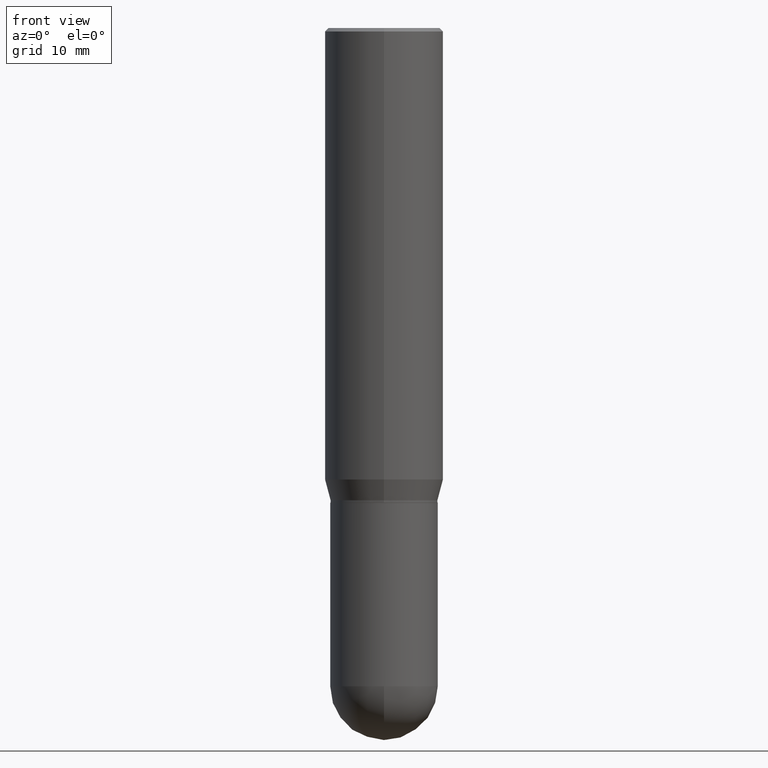
[diagram: clean part render]
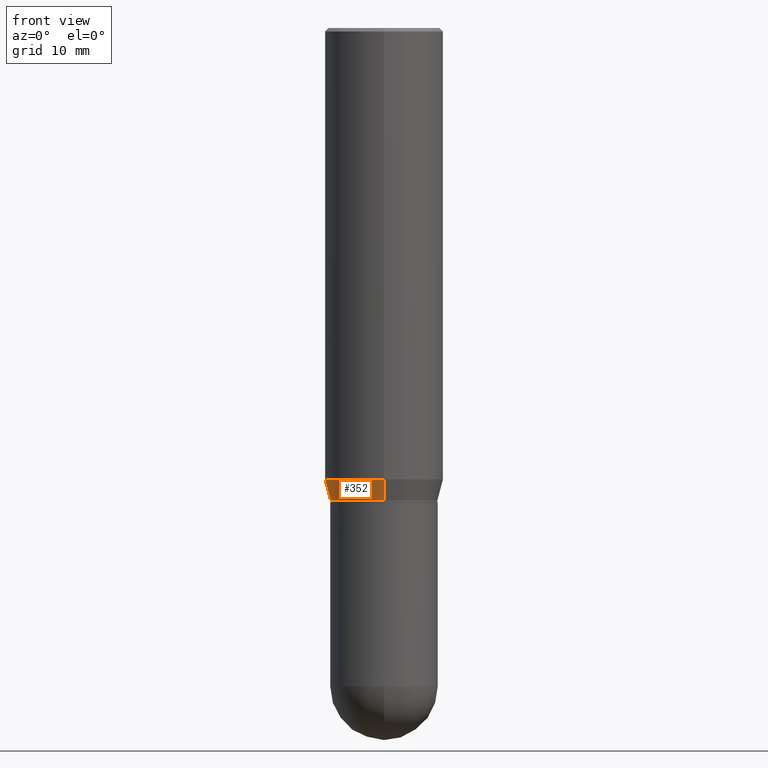
[diagram: same view with one face highlighted and labeled with its STEP entity id]
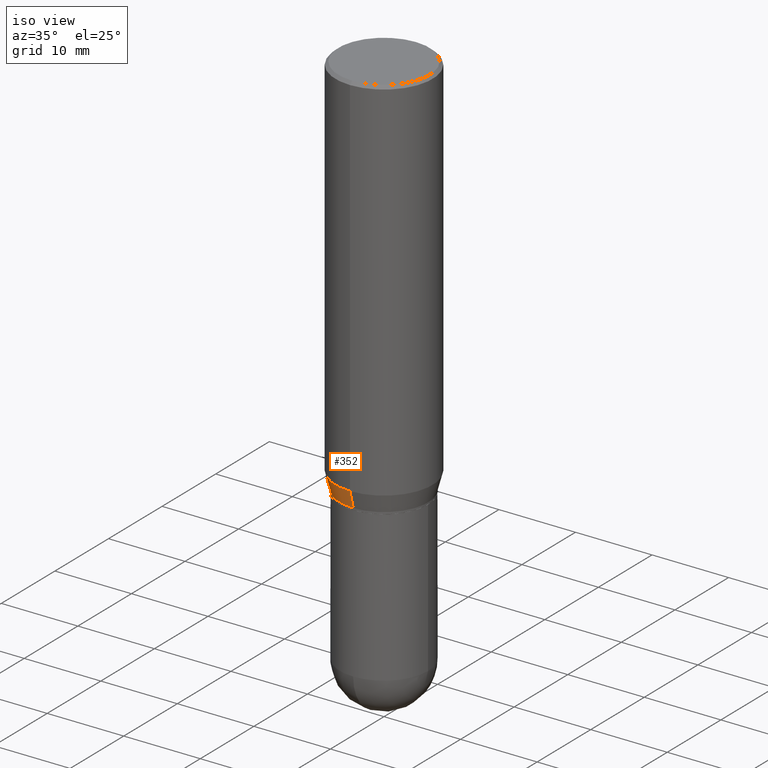
[diagram: same view with one face highlighted and labeled with its STEP entity id]
A machine part, front view. The second image highlights one B-rep face of the part: STEP entity #352.
A second angle (iso view) of the same face is appended — the face is thin or edge-on in the first view.
In plain terms, the highlighted conical surface has half-angle 15 deg.
Its self-contained STEP definition (entity closure, byte-faithful):
#30 = CARTESIAN_POINT ( 'NONE',  ( 4.867212225805769554E-29, -6.947003463044396900E-15, -1.990000000000000435 ) ) ;
#33 = DIRECTION ( 'NONE',  ( -2.445835289349632530E-29, 3.490956514092661325E-15, 1.000000000000000000 ) ) ;
#36 = LINE ( 'NONE', #156, #383 ) ;
#56 = ORIENTED_EDGE ( 'NONE', *, *, #179, .T. ) ;
#57 = AXIS2_PLACEMENT_3D ( 'NONE', #30, #500, #374 ) ;
#64 = AXIS2_PLACEMENT_3D ( 'NONE', #189, #33, #257 ) ;
#85 = ORIENTED_EDGE ( 'NONE', *, *, #329, .F. ) ;
#92 = ORIENTED_EDGE ( 'NONE', *, *, #115, .F. ) ;
#107 = DIRECTION ( 'NONE',  ( 1.839019923739601893E-15, 0.2588190451025252359, 0.9659258262890670910 ) ) ;
#110 = CIRCLE ( 'NONE', #64, 0.2500000000000000000 ) ;
#112 = CARTESIAN_POINT ( 'NONE',  ( 1.776356839400296613E-15, 0.2499999999999933664, -1.902483408562511302 ) ) ;
#115 = EDGE_CURVE ( 'NONE', #396, #135, #223, .T. ) ;
#135 = VERTEX_POINT ( 'NONE', #112 ) ;
#152 = CONICAL_SURFACE ( 'NONE', #57, 0.2265499999999999736, 0.2617993877991505181 ) ;
#153 = CARTESIAN_POINT ( 'NONE',  ( 1.693045703632425956E-15, 0.2265499999999930347, -1.990000000000001101 ) ) ;
#156 = CARTESIAN_POINT ( 'NONE',  ( -1.581990194629774423E-15, -0.2265500000000069125, -1.989999999999999547 ) ) ;
#161 = DIRECTION ( 'NONE',  ( -6.982962677686265922E-15, -1.000000000000000000, 3.617543138818270030E-15 ) ) ;
#165 = DIRECTION ( 'NONE',  ( -2.445835289349632530E-29, 3.490956514092661325E-15, 1.000000000000000000 ) ) ;
#179 = EDGE_CURVE ( 'NONE', #213, #313, #36, .T. ) ;
#189 = CARTESIAN_POINT ( 'NONE',  ( 4.653161058064362785E-29, -6.641486848074505255E-15, -1.902483408562510414 ) ) ;
#191 = DIRECTION ( 'NONE',  ( -1.807323732225331717E-15, -0.2588190451025184080, 0.9659258262890689783 ) ) ;
#205 = ORIENTED_EDGE ( 'NONE', *, *, #403, .T. ) ;
#213 = VERTEX_POINT ( 'NONE', #359 ) ;
#220 = CARTESIAN_POINT ( 'NONE',  ( -1.745740669421519543E-15, -0.2500000000000066058, -1.902483408562509748 ) ) ;
#223 = LINE ( 'NONE', #461, #324 ) ;
#232 = CIRCLE ( 'NONE', #296, 0.2265499999999999736 ) ;
#233 = CARTESIAN_POINT ( 'NONE',  ( 4.867212225805769554E-29, -6.947003463044396900E-15, -1.990000000000000435 ) ) ;
#257 = DIRECTION ( 'NONE',  ( -6.982962677686265922E-15, -1.000000000000000000, 3.278217592397115862E-15 ) ) ;
#296 = AXIS2_PLACEMENT_3D ( 'NONE', #233, #165, #161 ) ;
#313 = VERTEX_POINT ( 'NONE', #220 ) ;
#324 = VECTOR ( 'NONE', #107, 39.37007874015748854 ) ;
#329 = EDGE_CURVE ( 'NONE', #135, #313, #110, .T. ) ;
#352 = ADVANCED_FACE ( 'NONE', ( #417 ), #152, .T. ) ;
#359 = CARTESIAN_POINT ( 'NONE',  ( -1.581990194629774423E-15, -0.2265500000000069125, -1.989999999999999547 ) ) ;
#374 = DIRECTION ( 'NONE',  ( -6.982962677686265922E-15, -1.000000000000000000, 3.617543138818270030E-15 ) ) ;
#383 = VECTOR ( 'NONE', #191, 39.37007874015748854 ) ;
#396 = VERTEX_POINT ( 'NONE', #153 ) ;
#403 = EDGE_CURVE ( 'NONE', #396, #213, #232, .T. ) ;
#417 = FACE_OUTER_BOUND ( 'NONE', #482, .T. ) ;
#461 = CARTESIAN_POINT ( 'NONE',  ( 1.609734567864555299E-15, 0.2265499999999930347, -1.990000000000001101 ) ) ;
#482 = EDGE_LOOP ( 'NONE', ( #92, #205, #56, #85 ) ) ;
#500 = DIRECTION ( 'NONE',  ( -2.445835289349632530E-29, 3.490956514092661325E-15, 1.000000000000000000 ) ) ;